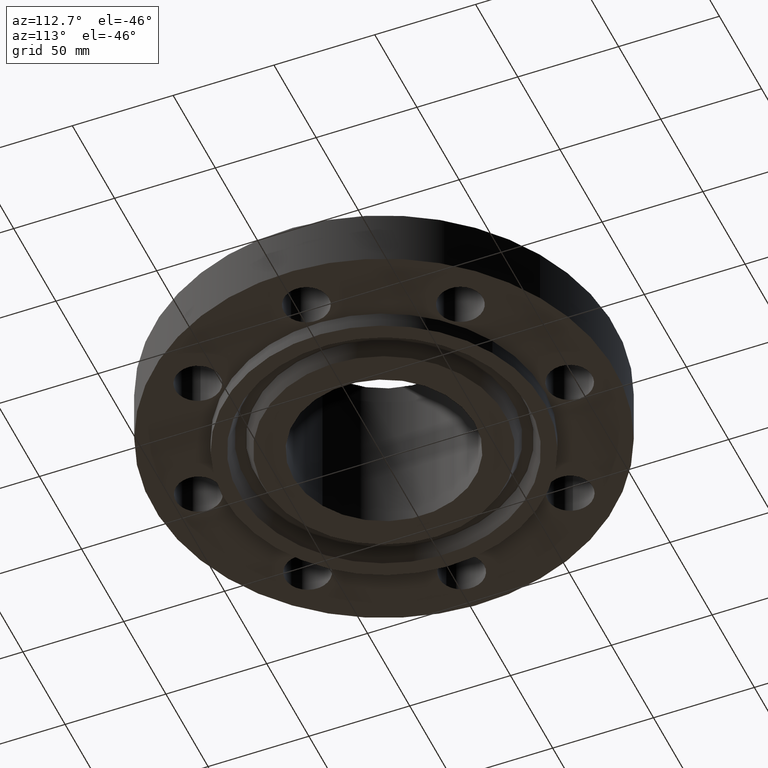
[diagram: clean part render]
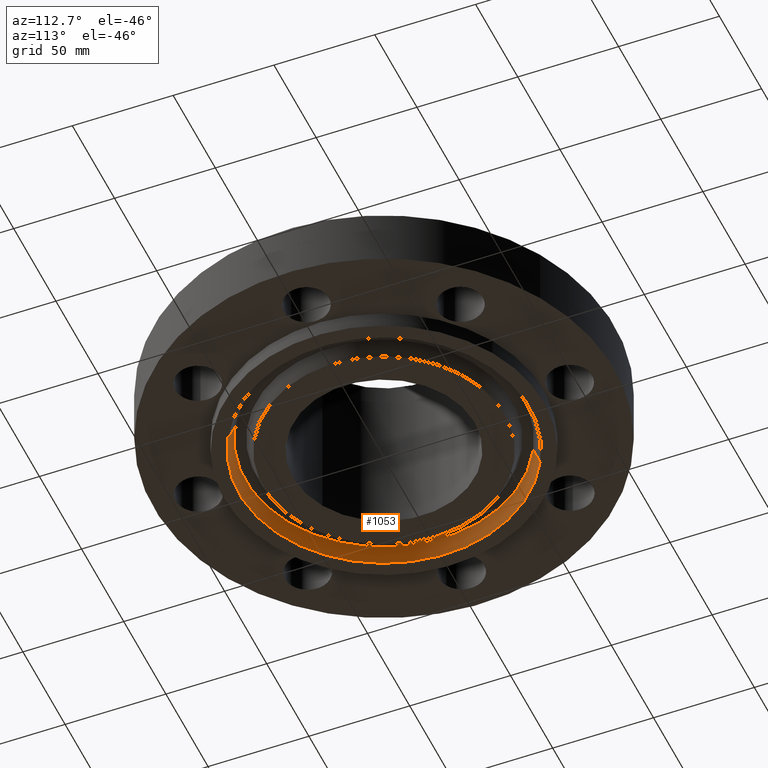
[diagram: same view with one face highlighted and labeled with its STEP entity id]
A machine part, auxiliary view. The second image highlights one B-rep face of the part: STEP entity #1053.
In plain terms, the highlighted conical surface has half-angle 23 deg.
Its self-contained STEP definition (entity closure, byte-faithful):
#952=AXIS2_PLACEMENT_3D('Circle Axis2P3D',#950,#951,$) ;
#999=AXIS2_PLACEMENT_3D('Circle Axis2P3D',#997,#998,$) ;
#1035=AXIS2_PLACEMENT_3D('Cone Axis2P3D',#1032,#1033,#1034) ;
#950=CARTESIAN_POINT('Axis2P3D Location',(-2.09805925913E-016,-5.59482469102E-016,-0.313000000001)) ;
#954=CARTESIAN_POINT('Vertex',(1.35605513595,-2.48224227632,-0.313000000001)) ;
#956=CARTESIAN_POINT('Vertex',(-1.35605513595,2.48224227632,-0.313000000001)) ;
#997=CARTESIAN_POINT('Axis2P3D Location',(0.,0.,-0.0188873350169)) ;
#1001=CARTESIAN_POINT('Vertex',(-1.29620201235,2.37268186847,-0.0188873350169)) ;
#1003=CARTESIAN_POINT('Vertex',(1.29620201235,-2.37268186847,-0.0188873350169)) ;
#1032=CARTESIAN_POINT('Axis2P3D Location',(0.,0.,-0.0188873350169)) ;
#1037=CARTESIAN_POINT('Line Origine',(-1.32612857415,2.42746207239,-0.165943667509)) ;
#1042=CARTESIAN_POINT('Line Origine',(1.32612857415,-2.42746207239,-0.165943667509)) ;
#951=DIRECTION('Axis2P3D Direction',(0.,0.,-0.0393700787402)) ;
#998=DIRECTION('Axis2P3D Direction',(0.,0.,0.0393700787402)) ;
#1033=DIRECTION('Axis2P3D Direction',(-0.,-0.,-0.0393700787402)) ;
#1034=DIRECTION('Axis2P3D XDirection',(-0.0188750212049,0.0345504945626,0.)) ;
#1038=DIRECTION('Vector Direction',(-0.00737505833565,0.0134999537303,-0.0362403485611)) ;
#1043=DIRECTION('Vector Direction',(0.00737505833565,-0.0134999537303,-0.0362403485611)) ;
#1039=VECTOR('Line Direction',#1038,0.0393700787402) ;
#1044=VECTOR('Line Direction',#1043,0.0393700787402) ;
#1048=ORIENTED_EDGE('',*,*,#958,.T.) ;
#1049=ORIENTED_EDGE('',*,*,#1041,.T.) ;
#1050=ORIENTED_EDGE('',*,*,#1005,.T.) ;
#1051=ORIENTED_EDGE('',*,*,#1046,.F.) ;
#1053=ADVANCED_FACE('PartBody',(#1052),#1036,.F.) ;
#953=CIRCLE('generated circle',#952,2.82850000001) ;
#1000=CIRCLE('generated circle',#999,2.7036565806) ;
#1036=CONICAL_SURFACE('Cone',#1035,2.7036565806,0.401425727959) ;
#958=EDGE_CURVE('',#955,#957,#953,.T.) ;
#1005=EDGE_CURVE('',#1002,#1004,#1000,.T.) ;
#1041=EDGE_CURVE('',#957,#1002,#1040,.F.) ;
#1046=EDGE_CURVE('',#955,#1004,#1045,.F.) ;
#1047=EDGE_LOOP('',(#1048,#1049,#1050,#1051)) ;
#1052=FACE_OUTER_BOUND('',#1047,.T.) ;
#1040=LINE('Line',#1037,#1039) ;
#1045=LINE('Line',#1042,#1044) ;
#955=VERTEX_POINT('',#954) ;
#957=VERTEX_POINT('',#956) ;
#1002=VERTEX_POINT('',#1001) ;
#1004=VERTEX_POINT('',#1003) ;